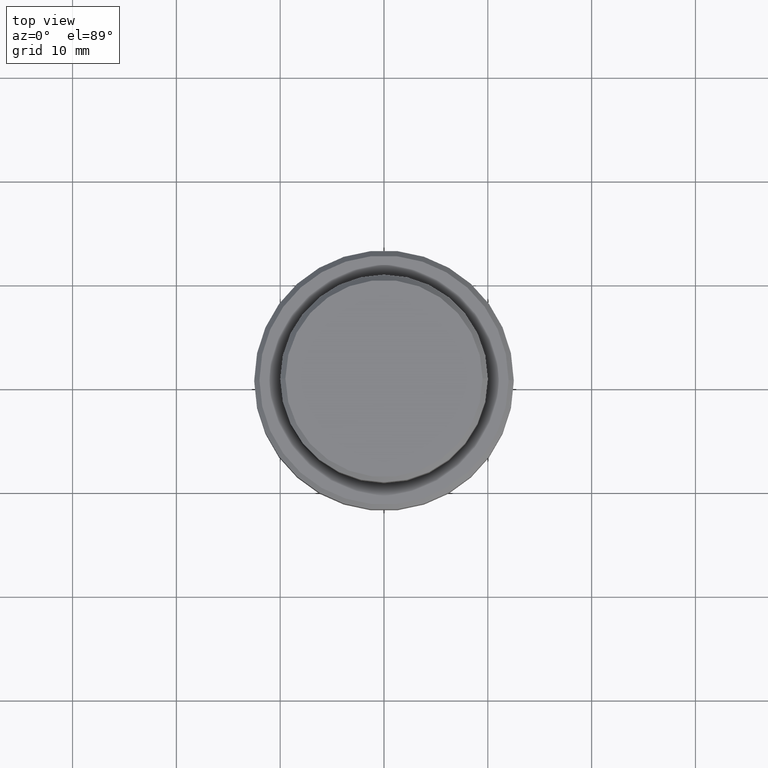
[diagram: clean part render]
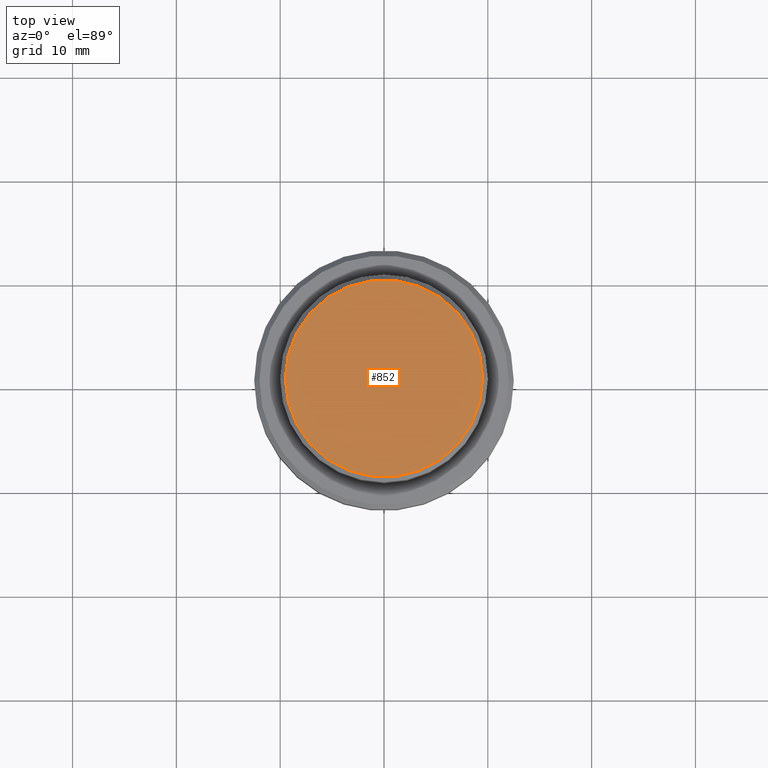
[diagram: same view with one face highlighted and labeled with its STEP entity id]
A machine part, top view. The second image highlights one B-rep face of the part: STEP entity #852.
In plain terms, the highlighted planar face has unit normal (0, -0, 1).
Its self-contained STEP definition (entity closure, byte-faithful):
#57 = CARTESIAN_POINT ( 'NONE',  ( 0.000000000000000000, 0.000000000000000000, 0.000000000000000000 ) ) ;
#143 = CIRCLE ( 'NONE', #1305, 9.499999999999987566 ) ;
#159 = DIRECTION ( 'NONE',  ( 0.000000000000000000, -0.000000000000000000, 1.000000000000000000 ) ) ;
#165 = VERTEX_POINT ( 'NONE', #882 ) ;
#177 = DIRECTION ( 'NONE',  ( 1.000000000000000000, 0.000000000000000000, 0.000000000000000000 ) ) ;
#188 = DIRECTION ( 'NONE',  ( 1.000000000000000000, 0.000000000000000000, 0.000000000000000000 ) ) ;
#190 = AXIS2_PLACEMENT_3D ( 'NONE', #946, #159, #177 ) ;
#292 = EDGE_LOOP ( 'NONE', ( #1349, #638 ) ) ;
#405 = CIRCLE ( 'NONE', #830, 9.499999999999987566 ) ;
#540 = CARTESIAN_POINT ( 'NONE',  ( 0.000000000000000000, 0.000000000000000000, 0.000000000000000000 ) ) ;
#593 = CARTESIAN_POINT ( 'NONE',  ( 9.499999999999987566, 1.194030629168668681E-15, 0.000000000000000000 ) ) ;
#616 = DIRECTION ( 'NONE',  ( -0.000000000000000000, -0.000000000000000000, 1.000000000000000000 ) ) ;
#638 = ORIENTED_EDGE ( 'NONE', *, *, #1391, .T. ) ;
#718 = VERTEX_POINT ( 'NONE', #593 ) ;
#791 = DIRECTION ( 'NONE',  ( 1.000000000000000000, 0.000000000000000000, 0.000000000000000000 ) ) ;
#830 = AXIS2_PLACEMENT_3D ( 'NONE', #540, #970, #791 ) ;
#852 = ADVANCED_FACE ( 'NONE', ( #1150 ), #1135, .T. ) ;
#882 = CARTESIAN_POINT ( 'NONE',  ( -9.499999999999987566, 0.000000000000000000, 0.000000000000000000 ) ) ;
#946 = CARTESIAN_POINT ( 'NONE',  ( 0.000000000000000000, 0.000000000000000000, 0.000000000000000000 ) ) ;
#970 = DIRECTION ( 'NONE',  ( -0.000000000000000000, -0.000000000000000000, 1.000000000000000000 ) ) ;
#1135 = PLANE ( 'NONE',  #190 ) ;
#1150 = FACE_OUTER_BOUND ( 'NONE', #292, .T. ) ;
#1292 = EDGE_CURVE ( 'NONE', #165, #718, #143, .T. ) ;
#1305 = AXIS2_PLACEMENT_3D ( 'NONE', #57, #616, #188 ) ;
#1349 = ORIENTED_EDGE ( 'NONE', *, *, #1292, .T. ) ;
#1391 = EDGE_CURVE ( 'NONE', #718, #165, #405, .T. ) ;